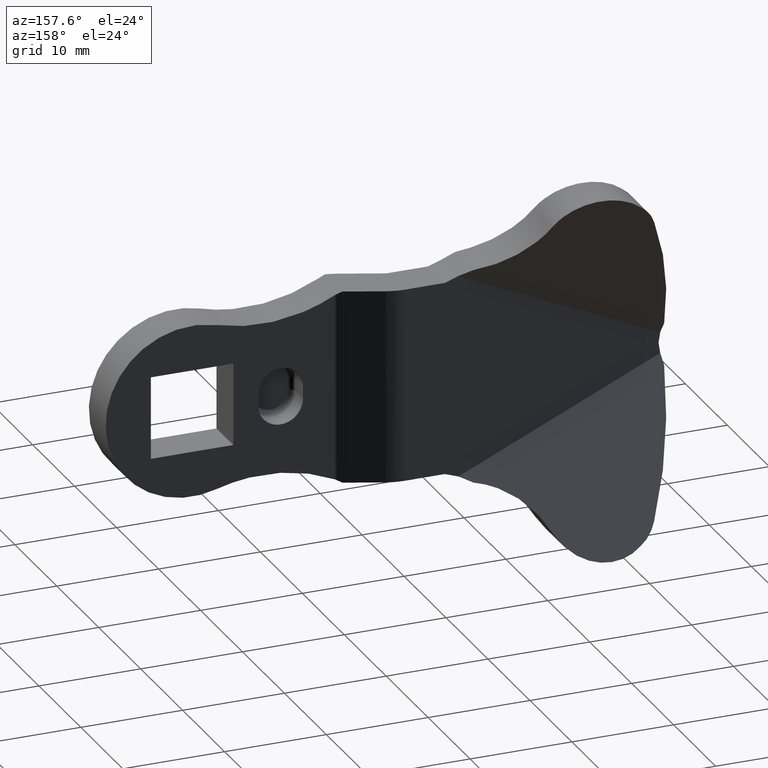
[diagram: clean part render]
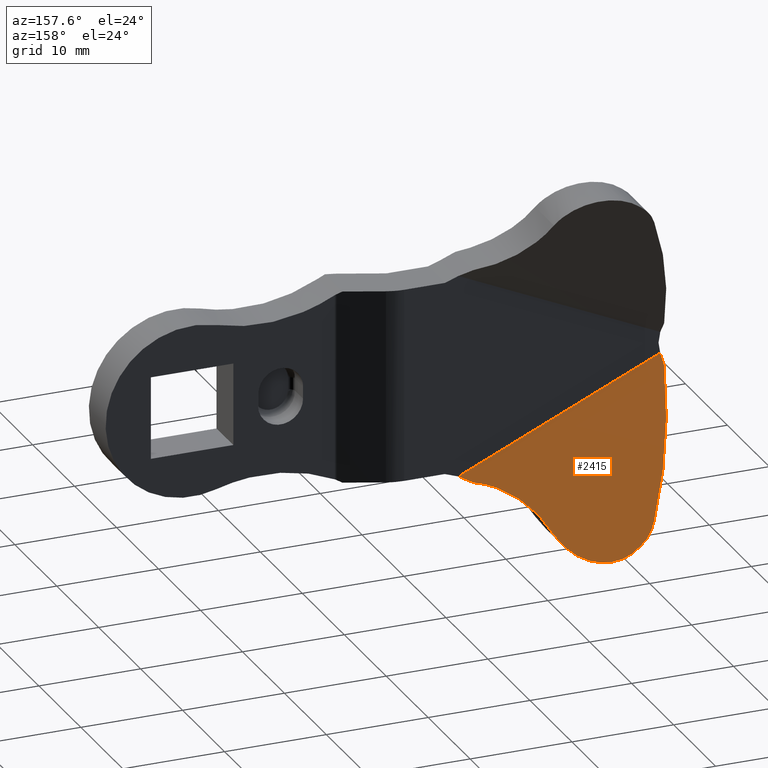
[diagram: same view with one face highlighted and labeled with its STEP entity id]
A machine part, auxiliary view. The second image highlights one B-rep face of the part: STEP entity #2415.
In plain terms, the highlighted face is a freeform B-spline surface patch.
Its self-contained STEP definition (entity closure, byte-faithful):
#945=CARTESIAN_POINT('',(-45.337636121082198,0.521405099817685,-2.089482362715215));
#946=VERTEX_POINT('',#945);
#967=CARTESIAN_POINT('',(-45.168823407492603,-4.336809E-016,-1.044820188316144));
#968=VERTEX_POINT('',#967);
#974=CARTESIAN_POINT('',(-45.337636121082198,0.521405099817685,-2.089482362715215));
#975=CARTESIAN_POINT('',(-45.168823407492603,-4.336809E-016,-1.044820188316144));
#976=QUASI_UNIFORM_CURVE('',1,(#974,#975),.UNSPECIFIED.,.F.,.U.);
#977=EDGE_CURVE('',#946,#968,#976,.T.);
#1015=CARTESIAN_POINT('',(-40.587385799156003,6.399462906614420,-16.858529841679950));
#1016=VERTEX_POINT('',#1015);
#1022=CARTESIAN_POINT('',(-33.018227363549897,4.129228839644839,-15.383347950852450));
#1023=VERTEX_POINT('',#1022);
#1024=CARTESIAN_POINT('',(-33.018227363549897,4.129228839644839,-15.383347950852450));
#1025=CARTESIAN_POINT('',(-34.140454019702361,5.328819296953846,-17.456777090351174));
#1026=CARTESIAN_POINT('',(-36.454561913630897,6.022894684607178,-17.907782322648320));
#1027=CARTESIAN_POINT('',(-38.768669807559434,6.716970072260511,-18.358787554945451));
#1028=CARTESIAN_POINT('',(-40.587385799156003,6.399462906614420,-16.858529841679950));
#1036=(BOUNDED_CURVE()B_SPLINE_CURVE(2,(#1024,#1025,#1026,#1027,#1028),.UNSPECIFIED.,.F.,.U.)B_SPLINE_CURVE_WITH_KNOTS((3,2,3),(0.0,0.500000000000000,1.0),.UNSPECIFIED.)CURVE()GEOMETRIC_REPRESENTATION_ITEM()RATIONAL_B_SPLINE_CURVE((1.0,0.904278073412903,1.0,0.904278073412903,1.0))REPRESENTATION_ITEM(''));
#1037=EDGE_CURVE('',#1023,#1016,#1036,.T.);
#1076=CARTESIAN_POINT('',(-42.174183209798301,5.809818760610600,-14.877703811113140));
#1077=VERTEX_POINT('',#1076);
#1083=CARTESIAN_POINT('',(-40.587385799156003,6.399462906614420,-16.858529841679950));
#1084=CARTESIAN_POINT('',(-41.683617112100833,6.280886385383907,-16.110709558024670));
#1085=CARTESIAN_POINT('',(-42.174183209798301,5.809818760610600,-14.877703811113140));
#1093=(BOUNDED_CURVE()B_SPLINE_CURVE(2,(#1083,#1084,#1085),.UNSPECIFIED.,.F.,.U.)CURVE()GEOMETRIC_REPRESENTATION_ITEM()QUASI_UNIFORM_CURVE()RATIONAL_B_SPLINE_CURVE((1.0,0.956295857056540,1.0))REPRESENTATION_ITEM(''));
#1094=EDGE_CURVE('',#1016,#1077,#1093,.T.);
#1114=CARTESIAN_POINT('',(-26.601474815793701,0.544798566693316,-10.565516693901481));
#1115=VERTEX_POINT('',#1114);
#1136=CARTESIAN_POINT('',(-33.018227363549897,4.129228839644839,-15.383347950852450));
#1137=CARTESIAN_POINT('',(-31.079143751330985,1.816002358559385,-11.283892225339208));
#1138=CARTESIAN_POINT('',(-26.601474815793701,0.544798566693316,-10.565516693901481));
#1146=(BOUNDED_CURVE()B_SPLINE_CURVE(2,(#1136,#1137,#1138),.UNSPECIFIED.,.F.,.U.)CURVE()GEOMETRIC_REPRESENTATION_ITEM()QUASI_UNIFORM_CURVE()RATIONAL_B_SPLINE_CURVE((1.0,0.884699805965349,1.0))REPRESENTATION_ITEM(''));
#1147=EDGE_CURVE('',#1023,#1115,#1146,.T.);
#1353=CARTESIAN_POINT('',(-25.333808491049400,0.0,-9.964739145604259));
#1354=VERTEX_POINT('',#1353);
#1355=CARTESIAN_POINT('',(-26.601474815793701,0.544798566693316,-10.565516693901481));
#1356=CARTESIAN_POINT('',(-25.983770479638725,0.259938879075631,-10.231095406528457));
#1357=CARTESIAN_POINT('',(-25.333808491049400,0.0,-9.964739145604259));
#1365=(BOUNDED_CURVE()B_SPLINE_CURVE(2,(#1355,#1356,#1357),.UNSPECIFIED.,.F.,.U.)CURVE()GEOMETRIC_REPRESENTATION_ITEM()QUASI_UNIFORM_CURVE()RATIONAL_B_SPLINE_CURVE((1.0,0.998561630942790,1.0))REPRESENTATION_ITEM(''));
#1366=EDGE_CURVE('',#1115,#1354,#1365,.T.);
#2380=CARTESIAN_POINT('',(-42.174183209798301,5.809818760610600,-14.877703811113140));
#2381=CARTESIAN_POINT('',(-44.811960264924807,3.508142432616525,-8.744830848309190));
#2382=CARTESIAN_POINT('',(-45.337636121082198,0.521405099817685,-2.089482362715215));
#2390=(BOUNDED_CURVE()B_SPLINE_CURVE(2,(#2380,#2381,#2382),.UNSPECIFIED.,.F.,.U.)CURVE()GEOMETRIC_REPRESENTATION_ITEM()QUASI_UNIFORM_CURVE()RATIONAL_B_SPLINE_CURVE((1.0,0.986633940156502,1.0))REPRESENTATION_ITEM(''));
#2391=EDGE_CURVE('',#1077,#946,#2390,.T.);
#2397=CARTESIAN_POINT('',(-45.581932990045402,8.205132996383199,-18.493110979795809));
#2398=CARTESIAN_POINT('',(-23.928507749386259,4.093567849611620,-19.394405683667351));
#2399=CARTESIAN_POINT('',(-46.405752817679591,-0.151748042703340,-0.162436567079849));
#2400=CARTESIAN_POINT('',(-24.752327577020449,-4.263313189474921,-1.063731270951399));
#2401=B_SPLINE_SURFACE_WITH_KNOTS('',1,1,((#2397,#2399),(#2398,#2400)),.UNSPECIFIED.,.F.,.F.,.U.,(2,2),(2,2),(0.0,22.058742592273660),(0.0,20.162583272855858),.UNSPECIFIED.);
#2402=ORIENTED_EDGE('',*,*,#2391,.T.);
#2403=ORIENTED_EDGE('',*,*,#977,.T.);
#2404=CARTESIAN_POINT('',(-25.333808491049400,0.0,-9.964739145604259));
#2405=CARTESIAN_POINT('',(-45.168823407492603,-4.336809E-016,-1.044820188316144));
#2406=QUASI_UNIFORM_CURVE('',1,(#2404,#2405),.UNSPECIFIED.,.F.,.U.);
#2407=EDGE_CURVE('',#1354,#968,#2406,.T.);
#2408=ORIENTED_EDGE('',*,*,#2407,.F.);
#2409=ORIENTED_EDGE('',*,*,#1366,.F.);
#2410=ORIENTED_EDGE('',*,*,#1147,.F.);
#2411=ORIENTED_EDGE('',*,*,#1037,.T.);
#2412=ORIENTED_EDGE('',*,*,#1094,.T.);
#2413=EDGE_LOOP('',(#2402,#2403,#2408,#2409,#2410,#2411,#2412));
#2414=FACE_OUTER_BOUND('',#2413,.T.);
#2415=ADVANCED_FACE('',(#2414),#2401,.F.);